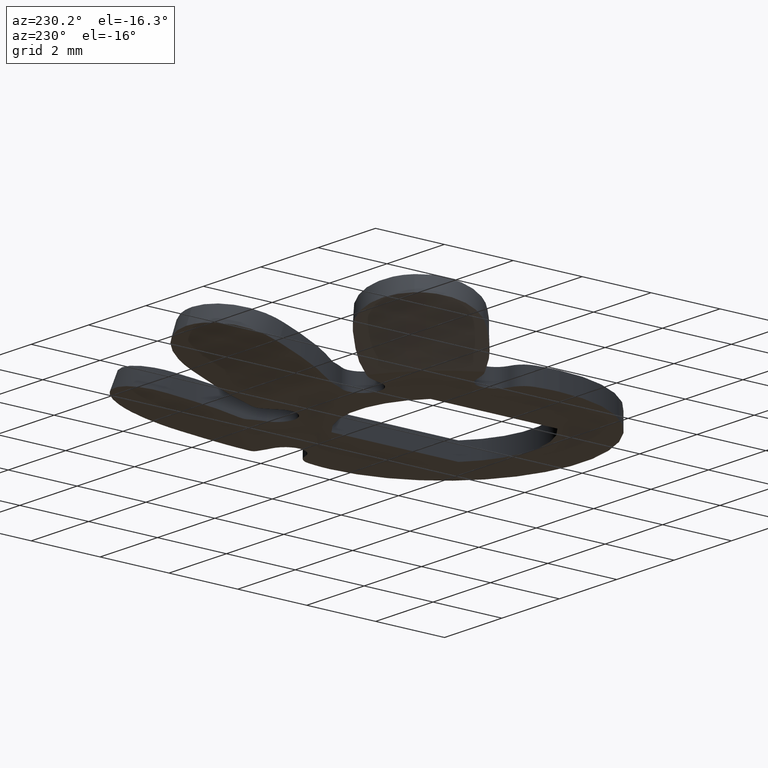
[diagram: clean part render]
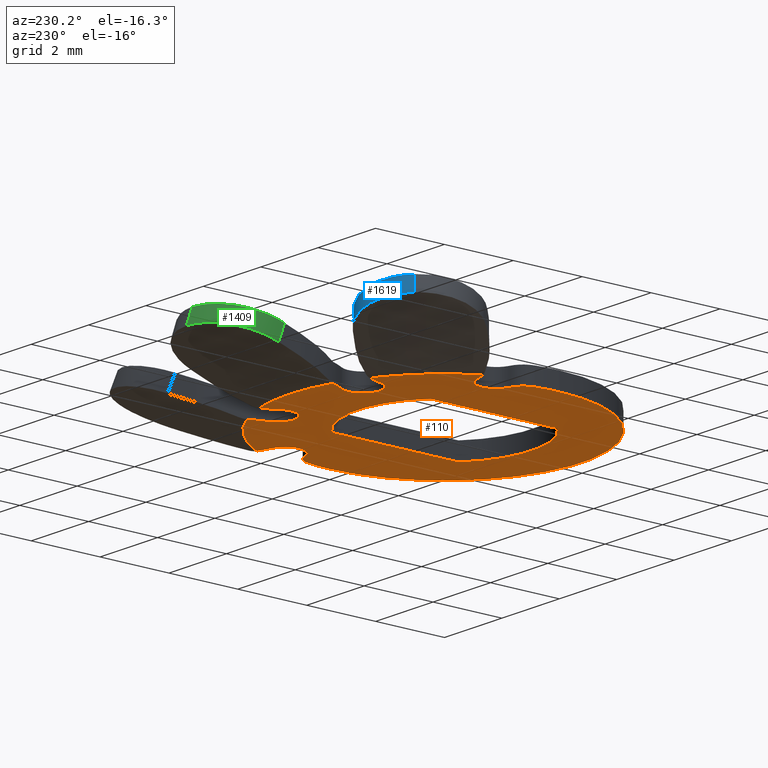
[diagram: same view with three faces highlighted in distinct colors, each labeled with its STEP entity id]
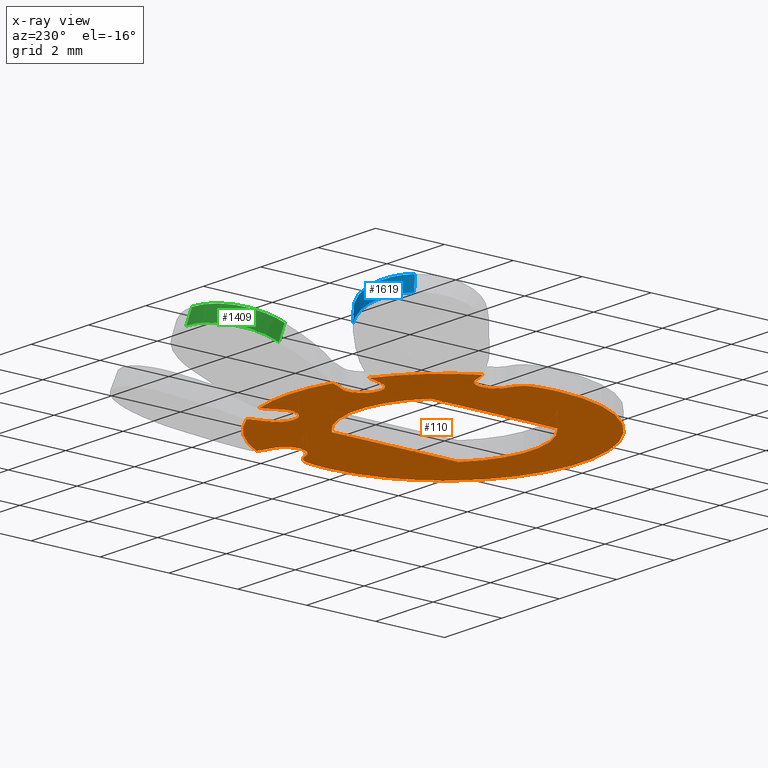
[diagram: x-ray of the same camera — body ghosted, the three highlighted faces saturated]
A machine part, auxiliary view with three faces highlighted in distinct colors.
The next image is the same camera in x-ray (body ghosted, the three faces saturated) — at least one of them is partly hidden behind the body in this view.
Their STEP definitions:

[orange] entity #110 — the highlighted planar face has unit normal (0, 0, 1).
#5 = DIRECTION ( 'NONE',  ( 0.0000000000000000000, -1.000000000000000000, 0.0000000000000000000 ) ) ;
#14 = EDGE_CURVE ( 'NONE', #172, #939, #544, .T. ) ;
#17 = DIRECTION ( 'NONE',  ( 1.000000000000000000, 2.602085213965211000E-015, 0.0000000000000000000 ) ) ;
#18 = CARTESIAN_POINT ( 'NONE',  ( -3.942765279000194600, 2.169009440899359200, 0.0000000000000000000 ) ) ;
#37 = DIRECTION ( 'NONE',  ( 1.000000000000000000, 0.0000000000000000000, 0.0000000000000000000 ) ) ;
#56 = DIRECTION ( 'NONE',  ( 1.000000000000000000, 0.0000000000000000000, 0.0000000000000000000 ) ) ;
#60 = EDGE_CURVE ( 'NONE', #1504, #808, #107, .T. ) ;
#64 = DIRECTION ( 'NONE',  ( 0.0000000000000000000, 1.000000000000000000, 0.0000000000000000000 ) ) ;
#65 = FACE_BOUND ( 'NONE', #533, .T. ) ;
#68 = CARTESIAN_POINT ( 'NONE',  ( 2.139618078849468300, 3.958792047665618900, 0.0000000000000000000 ) ) ;
#71 = DIRECTION ( 'NONE',  ( 0.0000000000000000000, 0.0000000000000000000, -1.000000000000000000 ) ) ;
#81 = AXIS2_PLACEMENT_3D ( 'NONE', #393, #1333, #524 ) ;
#88 = CARTESIAN_POINT ( 'NONE',  ( -3.450121446301577200, 0.5887800996721207500, 0.0000000000000000000 ) ) ;
#90 = DIRECTION ( 'NONE',  ( 1.000000000000000000, 0.0000000000000000000, 0.0000000000000000000 ) ) ;
#91 = ORIENTED_EDGE ( 'NONE', *, *, #499, .T. ) ;
#94 = VERTEX_POINT ( 'NONE', #519 ) ;
#98 = EDGE_CURVE ( 'NONE', #1417, #1415, #793, .T. ) ;
#106 = DIRECTION ( 'NONE',  ( -1.000000000000000000, 0.0000000000000000000, 0.0000000000000000000 ) ) ;
#107 = CIRCLE ( 'NONE', #1633, 4.000000000000000000 ) ;
#110 = ADVANCED_FACE ( 'NONE', ( #827, #65 ), #1715, .F. ) ;
#123 = DIRECTION ( 'NONE',  ( 1.000000000000000000, 0.0000000000000000000, 0.0000000000000000000 ) ) ;
#139 = CARTESIAN_POINT ( 'NONE',  ( -2.836116827043756700, 4.957437170603397700, 0.0000000000000000000 ) ) ;
#155 = EDGE_CURVE ( 'NONE', #1151, #274, #663, .T. ) ;
#158 = CIRCLE ( 'NONE', #545, 3.000000000000000000 ) ;
#160 = CARTESIAN_POINT ( 'NONE',  ( 0.0000000000000000000, 0.0000000000000000000, 0.0000000000000000000 ) ) ;
#172 = VERTEX_POINT ( 'NONE', #962 ) ;
#180 = CARTESIAN_POINT ( 'NONE',  ( -1.725000000000000100, -1.843908891458577300, 0.0000000000000000000 ) ) ;
#182 = LINE ( 'NONE', #1525, #307 ) ;
#183 = EDGE_CURVE ( 'NONE', #1374, #849, #932, .T. ) ;
#187 = DIRECTION ( 'NONE',  ( 1.000000000000000000, 8.673617379884035500E-016, 0.0000000000000000000 ) ) ;
#191 = AXIS2_PLACEMENT_3D ( 'NONE', #558, #628, #1639 ) ;
#198 = ORIENTED_EDGE ( 'NONE', *, *, #647, .T. ) ;
#214 = ORIENTED_EDGE ( 'NONE', *, *, #1342, .T. ) ;
#227 = VERTEX_POINT ( 'NONE', #424 ) ;
#239 = CARTESIAN_POINT ( 'NONE',  ( 1.000000000000000000, 3.621320343559632200, 0.0000000000000000000 ) ) ;
#241 = EDGE_CURVE ( 'NONE', #453, #1417, #1245, .T. ) ;
#244 = DIRECTION ( 'NONE',  ( 1.000000000000000000, -2.312964634635742900E-014, 0.0000000000000000000 ) ) ;
#258 = VECTOR ( 'NONE', #5, 1000.000000000000000 ) ;
#274 = VERTEX_POINT ( 'NONE', #180 ) ;
#283 = DIRECTION ( 'NONE',  ( 1.000000000000000000, -7.228014483236696800E-015, 0.0000000000000000000 ) ) ;
#289 = DIRECTION ( 'NONE',  ( -0.0000000000000000000, -0.0000000000000000000, -1.000000000000000000 ) ) ;
#294 = DIRECTION ( 'NONE',  ( 1.000000000000000000, 3.552713678800500900E-015, 0.0000000000000000000 ) ) ;
#297 = ORIENTED_EDGE ( 'NONE', *, *, #14, .T. ) ;
#307 = VECTOR ( 'NONE', #64, 1000.000000000000000 ) ;
#330 = DIRECTION ( 'NONE',  ( 1.000000000000000000, 0.0000000000000000000, 0.0000000000000000000 ) ) ;
#341 = AXIS2_PLACEMENT_3D ( 'NONE', #1332, #1352, #1714 ) ;
#353 = VERTEX_POINT ( 'NONE', #1157 ) ;
#356 = AXIS2_PLACEMENT_3D ( 'NONE', #804, #933, #123 ) ;
#361 = CIRCLE ( 'NONE', #341, 0.5000000000000000000 ) ;
#364 = CARTESIAN_POINT ( 'NONE',  ( -1.286350249507953500, 4.312227154915527500, 0.0000000000000000000 ) ) ;
#366 = CIRCLE ( 'NONE', #1097, 0.4999999999999997800 ) ;
#367 = ORIENTED_EDGE ( 'NONE', *, *, #60, .T. ) ;
#393 = CARTESIAN_POINT ( 'NONE',  ( -1.500000000000000000, 5.424095981291626100, 0.0000000000000000000 ) ) ;
#396 = CIRCLE ( 'NONE', #1710, 2.524999999999999900 ) ;
#399 = EDGE_CURVE ( 'NONE', #958, #227, #465, .T. ) ;
#401 = EDGE_CURVE ( 'NONE', #274, #1129, #745, .T. ) ;
#410 = ORIENTED_EDGE ( 'NONE', *, *, #155, .T. ) ;
#411 = CARTESIAN_POINT ( 'NONE',  ( 1.724999999999999900, 1.843908891458577100, 0.0000000000000000000 ) ) ;
#424 = CARTESIAN_POINT ( 'NONE',  ( 1.985153603136833300, 3.500382419965138300, 0.0000000000000000000 ) ) ;
#436 = CARTESIAN_POINT ( 'NONE',  ( 0.0000000000000000000, 0.0000000000000000000, 0.0000000000000000000 ) ) ;
#445 = DIRECTION ( 'NONE',  ( 0.0000000000000000000, 0.0000000000000000000, -1.000000000000000000 ) ) ;
#453 = VERTEX_POINT ( 'NONE', #364 ) ;
#454 = DIRECTION ( 'NONE',  ( 0.0000000000000000000, 0.0000000000000000000, 1.000000000000000000 ) ) ;
#465 = CIRCLE ( 'NONE', #678, 0.4999999999999997800 ) ;
#490 = DIRECTION ( 'NONE',  ( -0.0000000000000000000, -0.0000000000000000000, -1.000000000000000000 ) ) ;
#491 = CARTESIAN_POINT ( 'NONE',  ( -1.985153603136833300, 3.500382419965138300, 0.0000000000000000000 ) ) ;
#493 = CARTESIAN_POINT ( 'NONE',  ( 1.499999999999999800, 3.621320343559632200, 0.0000000000000000000 ) ) ;
#499 = EDGE_CURVE ( 'NONE', #1154, #453, #1363, .T. ) ;
#519 = CARTESIAN_POINT ( 'NONE',  ( 4.000000000000000000, 4.898587196589412800E-016, 0.0000000000000000000 ) ) ;
#523 = EDGE_CURVE ( 'NONE', #983, #1154, #1672, .T. ) ;
#524 = DIRECTION ( 'NONE',  ( 1.000000000000000000, 0.0000000000000000000, 0.0000000000000000000 ) ) ;
#533 = EDGE_LOOP ( 'NONE', ( #1341, #1134, #410, #651 ) ) ;
#544 = CIRCLE ( 'NONE', #1110, 0.5000000000000000000 ) ;
#545 = AXIS2_PLACEMENT_3D ( 'NONE', #1027, #893, #244 ) ;
#556 = DIRECTION ( 'NONE',  ( 1.000000000000000000, -2.664535259100376100E-015, 0.0000000000000000000 ) ) ;
#558 = CARTESIAN_POINT ( 'NONE',  ( 4.896075221957835800, 2.774754878398176100, 0.0000000000000000000 ) ) ;
#561 = CIRCLE ( 'NONE', #823, 0.5000000000000000000 ) ;
#569 = CARTESIAN_POINT ( 'NONE',  ( 3.450121446301580800, 0.5887800996721007700, 0.0000000000000000000 ) ) ;
#574 = ORIENTED_EDGE ( 'NONE', *, *, #980, .T. ) ;
#575 = ORIENTED_EDGE ( 'NONE', *, *, #98, .T. ) ;
#605 = DIRECTION ( 'NONE',  ( 0.0000000000000000000, 0.0000000000000000000, -1.000000000000000000 ) ) ;
#612 = ORIENTED_EDGE ( 'NONE', *, *, #1403, .T. ) ;
#628 = DIRECTION ( 'NONE',  ( 0.0000000000000000000, 0.0000000000000000000, -1.000000000000000000 ) ) ;
#635 = DIRECTION ( 'NONE',  ( 1.000000000000000000, 0.0000000000000000000, 0.0000000000000000000 ) ) ;
#642 = ORIENTED_EDGE ( 'NONE', *, *, #1454, .T. ) ;
#647 = EDGE_CURVE ( 'NONE', #710, #983, #158, .T. ) ;
#651 = ORIENTED_EDGE ( 'NONE', *, *, #401, .T. ) ;
#654 = AXIS2_PLACEMENT_3D ( 'NONE', #569, #1006, #187 ) ;
#663 = LINE ( 'NONE', #818, #258 ) ;
#665 = ORIENTED_EDGE ( 'NONE', *, *, #852, .T. ) ;
#678 = AXIS2_PLACEMENT_3D ( 'NONE', #493, #1433, #635 ) ;
#682 = DIRECTION ( 'NONE',  ( 0.0000000000000000000, 0.0000000000000000000, -1.000000000000000000 ) ) ;
#686 = DIRECTION ( 'NONE',  ( 1.000000000000000000, 0.0000000000000000000, 0.0000000000000000000 ) ) ;
#692 = CARTESIAN_POINT ( 'NONE',  ( 1.499999999999999800, 3.621320343559632200, 0.0000000000000000000 ) ) ;
#695 = CIRCLE ( 'NONE', #744, 4.000000000000000000 ) ;
#705 = CARTESIAN_POINT ( 'NONE',  ( -3.561744368610708600, 2.046515551782392500, 0.0000000000000000000 ) ) ;
#710 = VERTEX_POINT ( 'NONE', #1557 ) ;
#721 = CARTESIAN_POINT ( 'NONE',  ( -1.071428571428571000, 3.878859720378488700, 0.0000000000000000000 ) ) ;
#730 = EDGE_LOOP ( 'NONE', ( #1601, #1503, #1467, #854, #1144, #746, #214, #642, #367, #1582, #297, #612, #574, #198, #1136, #91, #1623, #575, #665, #1501 ) ) ;
#744 = AXIS2_PLACEMENT_3D ( 'NONE', #1653, #490, #1610 ) ;
#745 = CIRCLE ( 'NONE', #1045, 2.524999999999999900 ) ;
#746 = ORIENTED_EDGE ( 'NONE', *, *, #1311, .T. ) ;
#752 = CARTESIAN_POINT ( 'NONE',  ( -4.000000000000000000, 0.0000000000000000000, 0.0000000000000000000 ) ) ;
#772 = DIRECTION ( 'NONE',  ( 0.0000000000000000000, 0.0000000000000000000, 1.000000000000000000 ) ) ;
#777 = CARTESIAN_POINT ( 'NONE',  ( 1.725000000000000300, -1.843908891458576800, 0.0000000000000000000 ) ) ;
#793 = CIRCLE ( 'NONE', #81, 3.000000000000000000 ) ;
#801 = EDGE_CURVE ( 'NONE', #1541, #1374, #1117, .T. ) ;
#804 = CARTESIAN_POINT ( 'NONE',  ( 0.0000000000000000000, 0.0000000000000000000, -2.117582368135750800E-019 ) ) ;
#808 = VERTEX_POINT ( 'NONE', #1163 ) ;
#816 = EDGE_CURVE ( 'NONE', #808, #172, #1729, .T. ) ;
#818 = CARTESIAN_POINT ( 'NONE',  ( -1.725000000000000100, 1.843908891458577300, 0.0000000000000000000 ) ) ;
#823 = AXIS2_PLACEMENT_3D ( 'NONE', #1268, #1354, #56 ) ;
#827 = FACE_OUTER_BOUND ( 'NONE', #730, .T. ) ;
#832 = CARTESIAN_POINT ( 'NONE',  ( 0.0000000000000000000, 0.0000000000000000000, 0.0000000000000000000 ) ) ;
#833 = DIRECTION ( 'NONE',  ( 0.0000000000000000000, 0.0000000000000000000, -1.000000000000000000 ) ) ;
#839 = CARTESIAN_POINT ( 'NONE',  ( 1.286350249507954200, 4.312227154915527500, 0.0000000000000000000 ) ) ;
#840 = CIRCLE ( 'NONE', #1278, 4.000000000000000000 ) ;
#842 = CARTESIAN_POINT ( 'NONE',  ( -1.499999999999999600, 3.621320343559632200, 0.0000000000000000000 ) ) ;
#849 = VERTEX_POINT ( 'NONE', #897 ) ;
#852 = EDGE_CURVE ( 'NONE', #1415, #958, #366, .T. ) ;
#854 = ORIENTED_EDGE ( 'NONE', *, *, #1396, .T. ) ;
#868 = CARTESIAN_POINT ( 'NONE',  ( 3.942995938630377700, 0.6728915424824008000, 0.0000000000000000000 ) ) ;
#893 = DIRECTION ( 'NONE',  ( 0.0000000000000000000, 0.0000000000000000000, -1.000000000000000000 ) ) ;
#897 = CARTESIAN_POINT ( 'NONE',  ( 3.561744368610718400, 2.046515551782373900, 0.0000000000000000000 ) ) ;
#906 = DIRECTION ( 'NONE',  ( 0.0000000000000000000, 0.0000000000000000000, 1.000000000000000000 ) ) ;
#907 = VERTEX_POINT ( 'NONE', #411 ) ;
#920 = AXIS2_PLACEMENT_3D ( 'NONE', #139, #682, #37 ) ;
#921 = DIRECTION ( 'NONE',  ( -0.0000000000000000000, -0.0000000000000000000, -1.000000000000000000 ) ) ;
#928 = CIRCLE ( 'NONE', #654, 0.5000000000000000000 ) ;
#932 = CIRCLE ( 'NONE', #1519, 2.999999999999999600 ) ;
#933 = DIRECTION ( 'NONE',  ( 0.0000000000000000000, -0.0000000000000000000, 1.000000000000000000 ) ) ;
#939 = VERTEX_POINT ( 'NONE', #705 ) ;
#958 = VERTEX_POINT ( 'NONE', #239 ) ;
#962 = CARTESIAN_POINT ( 'NONE',  ( -3.566401869253388800, 1.075071024158839300, 0.0000000000000000000 ) ) ;
#971 = CARTESIAN_POINT ( 'NONE',  ( 0.0000000000000000000, 0.0000000000000000000, 0.0000000000000000000 ) ) ;
#980 = EDGE_CURVE ( 'NONE', #1255, #710, #1264, .T. ) ;
#983 = VERTEX_POINT ( 'NONE', #491 ) ;
#997 = CARTESIAN_POINT ( 'NONE',  ( 3.942765279000205700, 2.169009440899338800, 0.0000000000000000000 ) ) ;
#1006 = DIRECTION ( 'NONE',  ( 0.0000000000000000000, 0.0000000000000000000, -1.000000000000000000 ) ) ;
#1015 = DIRECTION ( 'NONE',  ( 1.000000000000000000, 1.734723475976807100E-015, 0.0000000000000000000 ) ) ;
#1027 = CARTESIAN_POINT ( 'NONE',  ( -4.896075221957836700, 2.774754878398177000, 0.0000000000000000000 ) ) ;
#1041 = DIRECTION ( 'NONE',  ( 0.0000000000000000000, 0.0000000000000000000, -1.000000000000000000 ) ) ;
#1042 = EDGE_CURVE ( 'NONE', #1129, #907, #182, .T. ) ;
#1045 = AXIS2_PLACEMENT_3D ( 'NONE', #1693, #906, #90 ) ;
#1097 = AXIS2_PLACEMENT_3D ( 'NONE', #692, #1428, #1249 ) ;
#1110 = AXIS2_PLACEMENT_3D ( 'NONE', #1560, #772, #1690 ) ;
#1113 = DIRECTION ( 'NONE',  ( 0.0000000000000000000, 0.0000000000000000000, -1.000000000000000000 ) ) ;
#1117 = CIRCLE ( 'NONE', #1188, 4.500000000000003600 ) ;
#1120 = DIRECTION ( 'NONE',  ( -1.000000000000000000, 0.0000000000000000000, 0.0000000000000000000 ) ) ;
#1129 = VERTEX_POINT ( 'NONE', #777 ) ;
#1134 = ORIENTED_EDGE ( 'NONE', *, *, #1517, .T. ) ;
#1135 = AXIS2_PLACEMENT_3D ( 'NONE', #971, #71, #330 ) ;
#1136 = ORIENTED_EDGE ( 'NONE', *, *, #523, .T. ) ;
#1140 = CIRCLE ( 'NONE', #191, 3.000000000000000900 ) ;
#1144 = ORIENTED_EDGE ( 'NONE', *, *, #1580, .T. ) ;
#1151 = VERTEX_POINT ( 'NONE', #1668 ) ;
#1154 = VERTEX_POINT ( 'NONE', #721 ) ;
#1157 = CARTESIAN_POINT ( 'NONE',  ( 3.182682292205207400, 1.561361948645538800, 0.0000000000000000000 ) ) ;
#1163 = CARTESIAN_POINT ( 'NONE',  ( -3.942995938630374100, 0.6728915424824237800, 0.0000000000000000000 ) ) ;
#1170 = CARTESIAN_POINT ( 'NONE',  ( -5.401456761889874900E-019, 0.0000000000000000000, 0.0000000000000000000 ) ) ;
#1188 = AXIS2_PLACEMENT_3D ( 'NONE', #832, #605, #556 ) ;
#1238 = CIRCLE ( 'NONE', #920, 3.000000000000000000 ) ;
#1245 = CIRCLE ( 'NONE', #1695, 4.500000000000003600 ) ;
#1246 = EDGE_CURVE ( 'NONE', #227, #1541, #1140, .T. ) ;
#1249 = DIRECTION ( 'NONE',  ( 1.000000000000000000, 0.0000000000000000000, 0.0000000000000000000 ) ) ;
#1255 = VERTEX_POINT ( 'NONE', #18 ) ;
#1264 = CIRCLE ( 'NONE', #1135, 4.500000000000003600 ) ;
#1268 = CARTESIAN_POINT ( 'NONE',  ( 3.682682292205207800, 1.561361948645538800, 0.0000000000000000000 ) ) ;
#1278 = AXIS2_PLACEMENT_3D ( 'NONE', #436, #289, #1120 ) ;
#1280 = DIRECTION ( 'NONE',  ( 1.000000000000000000, 0.0000000000000000000, 0.0000000000000000000 ) ) ;
#1285 = DIRECTION ( 'NONE',  ( 0.0000000000000000000, 0.0000000000000000000, 1.000000000000000000 ) ) ;
#1292 = CARTESIAN_POINT ( 'NONE',  ( 3.566401869253394500, 1.075071024158819900, 0.0000000000000000000 ) ) ;
#1311 = EDGE_CURVE ( 'NONE', #1544, #1466, #928, .T. ) ;
#1313 = AXIS2_PLACEMENT_3D ( 'NONE', #1677, #1041, #283 ) ;
#1332 = CARTESIAN_POINT ( 'NONE',  ( 3.682682292205207800, 1.561361948645538800, 0.0000000000000000000 ) ) ;
#1333 = DIRECTION ( 'NONE',  ( 0.0000000000000000000, 0.0000000000000000000, -1.000000000000000000 ) ) ;
#1341 = ORIENTED_EDGE ( 'NONE', *, *, #1042, .T. ) ;
#1342 = EDGE_CURVE ( 'NONE', #1466, #94, #695, .T. ) ;
#1352 = DIRECTION ( 'NONE',  ( 0.0000000000000000000, 0.0000000000000000000, 1.000000000000000000 ) ) ;
#1354 = DIRECTION ( 'NONE',  ( 0.0000000000000000000, 0.0000000000000000000, 1.000000000000000000 ) ) ;
#1361 = AXIS2_PLACEMENT_3D ( 'NONE', #88, #445, #1015 ) ;
#1363 = CIRCLE ( 'NONE', #1313, 3.000000000000000000 ) ;
#1374 = VERTEX_POINT ( 'NONE', #997 ) ;
#1396 = EDGE_CURVE ( 'NONE', #849, #353, #561, .T. ) ;
#1403 = EDGE_CURVE ( 'NONE', #939, #1255, #1238, .T. ) ;
#1415 = VERTEX_POINT ( 'NONE', #1621 ) ;
#1417 = VERTEX_POINT ( 'NONE', #839 ) ;
#1428 = DIRECTION ( 'NONE',  ( 0.0000000000000000000, 0.0000000000000000000, 1.000000000000000000 ) ) ;
#1433 = DIRECTION ( 'NONE',  ( 0.0000000000000000000, 0.0000000000000000000, 1.000000000000000000 ) ) ;
#1454 = EDGE_CURVE ( 'NONE', #94, #1504, #840, .T. ) ;
#1466 = VERTEX_POINT ( 'NONE', #868 ) ;
#1467 = ORIENTED_EDGE ( 'NONE', *, *, #183, .T. ) ;
#1501 = ORIENTED_EDGE ( 'NONE', *, *, #399, .T. ) ;
#1503 = ORIENTED_EDGE ( 'NONE', *, *, #801, .T. ) ;
#1504 = VERTEX_POINT ( 'NONE', #752 ) ;
#1517 = EDGE_CURVE ( 'NONE', #907, #1151, #396, .T. ) ;
#1519 = AXIS2_PLACEMENT_3D ( 'NONE', #1625, #833, #17 ) ;
#1525 = CARTESIAN_POINT ( 'NONE',  ( 1.725000000000000100, -1.843908891458577300, 0.0000000000000000000 ) ) ;
#1541 = VERTEX_POINT ( 'NONE', #68 ) ;
#1544 = VERTEX_POINT ( 'NONE', #1292 ) ;
#1557 = CARTESIAN_POINT ( 'NONE',  ( -2.139618078849468800, 3.958792047665618900, 0.0000000000000000000 ) ) ;
#1560 = CARTESIAN_POINT ( 'NONE',  ( -3.682682292205200700, 1.561361948645558100, 0.0000000000000000000 ) ) ;
#1572 = AXIS2_PLACEMENT_3D ( 'NONE', #842, #454, #686 ) ;
#1580 = EDGE_CURVE ( 'NONE', #353, #1544, #361, .T. ) ;
#1582 = ORIENTED_EDGE ( 'NONE', *, *, #816, .T. ) ;
#1601 = ORIENTED_EDGE ( 'NONE', *, *, #1246, .T. ) ;
#1610 = DIRECTION ( 'NONE',  ( -1.000000000000000000, 0.0000000000000000000, 0.0000000000000000000 ) ) ;
#1621 = CARTESIAN_POINT ( 'NONE',  ( 1.071428571428571400, 3.878859720378488300, 0.0000000000000000000 ) ) ;
#1623 = ORIENTED_EDGE ( 'NONE', *, *, #241, .T. ) ;
#1625 = CARTESIAN_POINT ( 'NONE',  ( 2.836116827043779800, 4.957437170603382600, 0.0000000000000000000 ) ) ;
#1633 = AXIS2_PLACEMENT_3D ( 'NONE', #1706, #921, #106 ) ;
#1639 = DIRECTION ( 'NONE',  ( 1.000000000000000000, 0.0000000000000000000, 0.0000000000000000000 ) ) ;
#1653 = CARTESIAN_POINT ( 'NONE',  ( 0.0000000000000000000, 0.0000000000000000000, 0.0000000000000000000 ) ) ;
#1668 = CARTESIAN_POINT ( 'NONE',  ( -1.724999999999999600, 1.843908891458577500, 0.0000000000000000000 ) ) ;
#1672 = CIRCLE ( 'NONE', #1572, 0.5000000000000000000 ) ;
#1677 = CARTESIAN_POINT ( 'NONE',  ( 1.499999999999999800, 5.424095981291627800, 0.0000000000000000000 ) ) ;
#1690 = DIRECTION ( 'NONE',  ( 1.000000000000000000, 0.0000000000000000000, 0.0000000000000000000 ) ) ;
#1693 = CARTESIAN_POINT ( 'NONE',  ( -5.401456761889874900E-019, 0.0000000000000000000, 0.0000000000000000000 ) ) ;
#1695 = AXIS2_PLACEMENT_3D ( 'NONE', #160, #1113, #294 ) ;
#1706 = CARTESIAN_POINT ( 'NONE',  ( 0.0000000000000000000, 0.0000000000000000000, 0.0000000000000000000 ) ) ;
#1710 = AXIS2_PLACEMENT_3D ( 'NONE', #1170, #1285, #1280 ) ;
#1714 = DIRECTION ( 'NONE',  ( 1.000000000000000000, 0.0000000000000000000, 0.0000000000000000000 ) ) ;
#1715 = PLANE ( 'NONE',  #356 ) ;
#1729 = CIRCLE ( 'NONE', #1361, 0.5000000000000000000 ) ;

[blue] entity #1619 — the highlighted cylindrical surface (partial cylindrical patch) has radius 1.5 mm, axis along (0.2357, -0.2357, 0.9428).
#74 = CARTESIAN_POINT ( 'NONE',  ( -4.726079195193233500, 5.666478840310746000, 0.9872256571698016000 ) ) ;
#78 = CARTESIAN_POINT ( 'NONE',  ( -5.229770581643996300, 5.369892709430446100, 1.028595479208968200 ) ) ;
#79 = CARTESIAN_POINT ( 'NONE',  ( -3.939164437171949200, 5.626979604168959700, 1.337366316422131700 ) ) ;
#137 = CARTESIAN_POINT ( 'NONE',  ( -3.224804046219519100, 5.346124389779144600, 0.5860651893589150500 ) ) ;
#142 = LINE ( 'NONE', #331, #867 ) ;
#174 = CARTESIAN_POINT ( 'NONE',  ( -3.109130276534830100, 5.230450620094456000, 1.048760268099292000 ) ) ;
#190 = B_SPLINE_CURVE_WITH_KNOTS ( 'NONE', 3,
 ( #1419, #1019, #344, #1553, #762, #1678, #894, #79, #1028, #215, #1164, #355, #1294, #489 ),
 .UNSPECIFIED., .F., .F.,
 ( 4, 2, 2, 2, 2, 2, 4 ),
 ( 1.301042606982605500E-018, 0.0002930243879203910900, 0.0005860487758407808700, 0.0008790731637611706000, 0.001172097551681561700, 0.001758146327522346000, 0.002344195103363130400 ),
 .UNSPECIFIED. ) ;
#215 = CARTESIAN_POINT ( 'NONE',  ( -4.323822356244973800, 5.628994458160271100, 1.417904810259690700 ) ) ;
#267 = LINE ( 'NONE', #174, #1647 ) ;
#311 = EDGE_CURVE ( 'NONE', #964, #1479, #142, .T. ) ;
#315 = CARTESIAN_POINT ( 'NONE',  ( -5.181980515339474500, 5.181980515339453100, 1.500000000000000000 ) ) ;
#331 = CARTESIAN_POINT ( 'NONE',  ( 0.0000000000000000000, 0.0000000000000000000, 22.22792206135787300 ) ) ;
#333 = CARTESIAN_POINT ( 'NONE',  ( -3.357337584700208500, 5.478657928259833600, 0.6503910318968161300 ) ) ;
#344 = CARTESIAN_POINT ( 'NONE',  ( -3.245055266573757500, 5.352629213632210900, 1.122023847624912900 ) ) ;
#355 = CARTESIAN_POINT ( 'NONE',  ( -4.875404130907195800, 5.434120066958350000, 1.489339449474831800 ) ) ;
#362 = CARTESIAN_POINT ( 'NONE',  ( -3.106557667908670200, 5.227878011468296100, 1.059050702603928400 ) ) ;
#373 = EDGE_CURVE ( 'NONE', #829, #964, #190, .T. ) ;
#477 = CARTESIAN_POINT ( 'NONE',  ( -3.517896393180107500, 5.582883004327428900, 0.7113922062524096200 ) ) ;
#489 = CARTESIAN_POINT ( 'NONE',  ( -5.181980515339474500, 5.181980515339453100, 1.500000000000000000 ) ) ;
#504 = CARTESIAN_POINT ( 'NONE',  ( -3.867193039028960800, 5.720381673631303300, 0.8196362706691520100 ) ) ;
#549 = CARTESIAN_POINT ( 'NONE',  ( -4.444572298807579500, 5.737237081422330600, 0.9443802491715208600 ) ) ;
#565 = DIRECTION ( 'NONE',  ( 0.2357022603955161200, -0.2357022603955151700, 0.9428090415820634700 ) ) ;
#638 = CYLINDRICAL_SURFACE ( 'NONE', #703, 1.499999999999999800 ) ;
#703 = AXIS2_PLACEMENT_3D ( 'NONE', #1080, #565, #1590 ) ;
#717 = EDGE_CURVE ( 'NONE', #1479, #1408, #1671, .T. ) ;
#762 = CARTESIAN_POINT ( 'NONE',  ( -3.485345170129433300, 5.498329556983208000, 1.210537340483334600 ) ) ;
#829 = VERTEX_POINT ( 'NONE', #362 ) ;
#863 = CARTESIAN_POINT ( 'NONE',  ( -4.059481853644173900, 5.754635513290582000, 0.8679251152951443800 ) ) ;
#867 = VECTOR ( 'NONE', #1145, 1000.000000000000100 ) ;
#886 = CARTESIAN_POINT ( 'NONE',  ( -4.346985846895517400, 5.748755357338423800, 0.9266777509689971800 ) ) ;
#894 = CARTESIAN_POINT ( 'NONE',  ( -3.751884390364583300, 5.593436759912415300, 1.290148664791235700 ) ) ;
#913 = EDGE_CURVE ( 'NONE', #1408, #829, #267, .T. ) ;
#957 = ORIENTED_EDGE ( 'NONE', *, *, #373, .F. ) ;
#959 = ORIENTED_EDGE ( 'NONE', *, *, #913, .F. ) ;
#964 = VERTEX_POINT ( 'NONE', #315 ) ;
#1019 = CARTESIAN_POINT ( 'NONE',  ( -3.172838615463146700, 5.294158959022772700, 1.091167200868840200 ) ) ;
#1025 = ORIENTED_EDGE ( 'NONE', *, *, #311, .F. ) ;
#1028 = CARTESIAN_POINT ( 'NONE',  ( -4.036260714277668500, 5.634607556437162900, 1.359368318076134200 ) ) ;
#1038 = FACE_OUTER_BOUND ( 'NONE', #1593, .T. ) ;
#1080 = CARTESIAN_POINT ( 'NONE',  ( 0.0000000000000000000, 0.0000000000000000000, 17.72792206135786900 ) ) ;
#1105 = DIRECTION ( 'NONE',  ( 0.2357022603955161200, -0.2357022603955151200, 0.9428090415820634700 ) ) ;
#1145 = DIRECTION ( 'NONE',  ( -0.2357022603955160600, 0.2357022603955151500, -0.9428090415820633600 ) ) ;
#1164 = CARTESIAN_POINT ( 'NONE',  ( -4.518190999993339400, 5.586991761301910700, 1.448549850599672600 ) ) ;
#1197 = ORIENTED_EDGE ( 'NONE', *, *, #717, .F. ) ;
#1269 = CARTESIAN_POINT ( 'NONE',  ( -5.154249342003576700, 5.432145592622741300, 1.025970362798416900 ) ) ;
#1294 = CARTESIAN_POINT ( 'NONE',  ( -5.041854692431332600, 5.322106338247595000, 1.500000000000000200 ) ) ;
#1305 = CARTESIAN_POINT ( 'NONE',  ( -4.633826024980922200, 5.696008224633757800, 0.9745729836361971500 ) ) ;
#1348 = CARTESIAN_POINT ( 'NONE',  ( -5.299831645537231900, 5.299831645537211400, 1.028595479208968200 ) ) ;
#1383 = CARTESIAN_POINT ( 'NONE',  ( -3.224804046219519100, 5.346124389779144600, 0.5860651893589150500 ) ) ;
#1388 = CARTESIAN_POINT ( 'NONE',  ( -5.299831645537231900, 5.299831645537211400, 1.028595479208968200 ) ) ;
#1395 = CARTESIAN_POINT ( 'NONE',  ( -4.905746502957233800, 5.589367136940866800, 1.007811277319115900 ) ) ;
#1408 = VERTEX_POINT ( 'NONE', #1383 ) ;
#1410 = CARTESIAN_POINT ( 'NONE',  ( -4.992746849835743500, 5.541689395094463700, 1.015641333992059100 ) ) ;
#1419 = CARTESIAN_POINT ( 'NONE',  ( -3.106557667908670200, 5.227878011468296100, 1.059050702603928400 ) ) ;
#1479 = VERTEX_POINT ( 'NONE', #1348 ) ;
#1553 = CARTESIAN_POINT ( 'NONE',  ( -3.400809910255692300, 5.454542605777478800, 1.181562583961582000 ) ) ;
#1590 = DIRECTION ( 'NONE',  ( 0.9701425001453319900, 0.0000000000000000000, -0.2425356250363326600 ) ) ;
#1593 = EDGE_LOOP ( 'NONE', ( #1025, #957, #959, #1197 ) ) ;
#1619 = ADVANCED_FACE ( 'NONE', ( #1038 ), #638, .T. ) ;
#1647 = VECTOR ( 'NONE', #1105, 1000.000000000000100 ) ;
#1671 = B_SPLINE_CURVE_WITH_KNOTS ( 'NONE', 3,
 ( #1388, #78, #1269, #1410, #1395, #74, #1305, #549, #886, #863, #504, #477, #333, #137 ),
 .UNSPECIFIED., .F., .F.,
 ( 4, 2, 2, 2, 2, 2, 4 ),
 ( 0.0000000000000000000, 0.0002930194012330182100, 0.0005860388024660364300, 0.0008790582036990546400, 0.001172077604932072900, 0.001758116407398109300, 0.002344155209864145700 ),
 .UNSPECIFIED. ) ;
#1678 = CARTESIAN_POINT ( 'NONE',  ( -3.661095378293107900, 5.567724091482767300, 1.264857422470551600 ) ) ;

[green] entity #1409 — the highlighted cylindrical surface (partial cylindrical patch) has radius 1.5 mm, axis along (-0, 0.3333, -0.9428).
#49 = CARTESIAN_POINT ( 'NONE',  ( -1.198657046398550600, 6.772687080920853500, 1.340096568720090800 ) ) ;
#73 = CARTESIAN_POINT ( 'NONE',  ( -1.499999999999999800, 5.893335986250543900, 1.059050702603922600 ) ) ;
#115 = VERTEX_POINT ( 'NONE', #931 ) ;
#168 = CARTESIAN_POINT ( 'NONE',  ( -1.073735115053968000E-015, -7.466231689562451100E-033, 22.22792206135787300 ) ) ;
#186 = CARTESIAN_POINT ( 'NONE',  ( -1.460164743941979800, 6.268091497162052100, 1.184121858734593600 ) ) ;
#210 = FACE_OUTER_BOUND ( 'NONE', #1336, .T. ) ;
#240 = CARTESIAN_POINT ( 'NONE',  ( -1.423395918069261500, 6.519518504788556400, 0.7378955607323264300 ) ) ;
#286 = EDGE_CURVE ( 'NONE', #923, #1193, #691, .T. ) ;
#325 = CARTESIAN_POINT ( 'NONE',  ( -1.499999999999999800, 5.893335986250543900, 1.059050702603922600 ) ) ;
#343 = CARTESIAN_POINT ( 'NONE',  ( -1.499999999999999800, 6.064032227981639000, 0.5762488223995144700 ) ) ;
#392 = ORIENTED_EDGE ( 'NONE', *, *, #1460, .T. ) ;
#446 = CARTESIAN_POINT ( 'NONE',  ( -0.09908351601977211100, 7.328427124746191600, 1.500000000000000000 ) ) ;
#483 = LINE ( 'NONE', #168, #1509 ) ;
#503 = CARTESIAN_POINT ( 'NONE',  ( -1.193463668065432700, 6.931228788814857800, 0.8651866891094639500 ) ) ;
#534 = B_SPLINE_CURVE_WITH_KNOTS ( 'NONE', 3,
 ( #1441, #1181, #1575, #1317, #240, #1626, #834, #503, #785, #1443, #1048, #643, #911, #1569 ),
 .UNSPECIFIED., .F., .F.,
 ( 4, 2, 2, 2, 2, 2, 4 ),
 ( 1.571457454787580700E-017, 0.0002930181684667388000, 0.0005860363369334618800, 0.0008790545054001850200, 0.001172072673866907900, 0.001758109010800354000, 0.002344145347733799400 ),
 .UNSPECIFIED. ) ;
#587 = CARTESIAN_POINT ( 'NONE',  ( -0.4834018399552480500, 7.254457918565565300, 1.479323875126517400 ) ) ;
#643 = CARTESIAN_POINT ( 'NONE',  ( -0.3950634605185010500, 7.456623580677403500, 1.017877804390301600 ) ) ;
#691 = B_SPLINE_CURVE_WITH_KNOTS ( 'NONE', 3,
 ( #1267, #446, #990, #1393, #587, #1527, #734, #1652, #864, #49, #996, #186, #1137, #325 ),
 .UNSPECIFIED., .F., .F.,
 ( 4, 2, 2, 2, 2, 2, 4 ),
 ( 3.736661433483488400E-019, 0.0002930256960387926100, 0.0005860513920775847800, 0.0008790770881163770700, 0.001172102784155169400, 0.001758154176232752400, 0.002344205568310335700 ),
 .UNSPECIFIED. ) ;
#708 = ORIENTED_EDGE ( 'NONE', *, *, #286, .F. ) ;
#719 = LINE ( 'NONE', #343, #1727 ) ;
#723 = DIRECTION ( 'NONE',  ( 0.0000000000000000000, 0.9428090415820632500, 0.3333333333333335900 ) ) ;
#734 = CARTESIAN_POINT ( 'NONE',  ( -0.7510854804574107500, 7.137526085205256400, 1.446253122824218400 ) ) ;
#785 = CARTESIAN_POINT ( 'NONE',  ( -1.130198542996664600, 7.005248036630225000, 0.8872832104285995900 ) ) ;
#834 = CARTESIAN_POINT ( 'NONE',  ( -1.302173978696238700, 6.775147601057915900, 0.8177812283600713900 ) ) ;
#864 = CARTESIAN_POINT ( 'NONE',  ( -0.9912076673942228400, 6.971915455220591100, 1.398586684724266500 ) ) ;
#911 = CARTESIAN_POINT ( 'NONE',  ( -0.1981633399704008100, 7.495093791412856800, 1.028595479208968000 ) ) ;
#923 = VERTEX_POINT ( 'NONE', #1438 ) ;
#931 = CARTESIAN_POINT ( 'NONE',  ( -1.499999999999999800, 6.060561618159758800, 0.5860651893590866900 ) ) ;
#990 = CARTESIAN_POINT ( 'NONE',  ( -0.1965064501185777000, 7.319039635548083600, 1.497388716553588200 ) ) ;
#996 = CARTESIAN_POINT ( 'NONE',  ( -1.310402384440981100, 6.612429888961257200, 1.292007132357390100 ) ) ;
#1048 = CARTESIAN_POINT ( 'NONE',  ( -0.7557468478607164400, 7.312209147487568100, 0.9768804874492038600 ) ) ;
#1065 = ORIENTED_EDGE ( 'NONE', *, *, #1705, .F. ) ;
#1137 = CARTESIAN_POINT ( 'NONE',  ( -1.500000000000000200, 6.080803537071273200, 1.123282575619345900 ) ) ;
#1165 = DIRECTION ( 'NONE',  ( -4.022472449296163500E-017, 0.3333333333333330400, -0.9428090415820634700 ) ) ;
#1181 = CARTESIAN_POINT ( 'NONE',  ( -1.499999999999999600, 6.154278516581879200, 0.6182286373091523400 ) ) ;
#1191 = AXIS2_PLACEMENT_3D ( 'NONE', #1494, #1165, #723 ) ;
#1193 = VERTEX_POINT ( 'NONE', #73 ) ;
#1202 = CYLINDRICAL_SURFACE ( 'NONE', #1191, 1.500000000000000200 ) ;
#1267 = CARTESIAN_POINT ( 'NONE',  ( -1.893832288749800200E-016, 7.328427124746189800, 1.500000000000000000 ) ) ;
#1317 = CARTESIAN_POINT ( 'NONE',  ( -1.452209141070807600, 6.428810920196761800, 0.7088349508185263200 ) ) ;
#1336 = EDGE_LOOP ( 'NONE', ( #708, #392, #1065, #1663 ) ) ;
#1349 = CARTESIAN_POINT ( 'NONE',  ( -1.692708666284992100E-016, 7.495093791412856800, 1.028595479208968200 ) ) ;
#1393 = CARTESIAN_POINT ( 'NONE',  ( -0.3881684563587746200, 7.282278762836325500, 1.487113417323717700 ) ) ;
#1409 = ADVANCED_FACE ( 'NONE', ( #210 ), #1202, .T. ) ;
#1438 = CARTESIAN_POINT ( 'NONE',  ( -1.893832288749800200E-016, 7.328427124746189800, 1.500000000000000000 ) ) ;
#1441 = CARTESIAN_POINT ( 'NONE',  ( -1.499999999999999800, 6.060561618159758800, 0.5860651893590866900 ) ) ;
#1443 = CARTESIAN_POINT ( 'NONE',  ( -0.9228884697087493800, 7.204525423645014500, 0.9460823278403169800 ) ) ;
#1460 = EDGE_CURVE ( 'NONE', #923, #1660, #483, .T. ) ;
#1474 = DIRECTION ( 'NONE',  ( 4.022472449296162200E-017, 0.3333333333333329800, -0.9428090415820633600 ) ) ;
#1494 = CARTESIAN_POINT ( 'NONE',  ( 8.706807083555321300E-016, 1.050686748448139700E-031, 17.72792206135786900 ) ) ;
#1509 = VECTOR ( 'NONE', #1474, 1000.000000000000100 ) ;
#1527 = CARTESIAN_POINT ( 'NONE',  ( -0.6649723641364285700, 7.181901617366940500, 1.458842579633270000 ) ) ;
#1568 = EDGE_CURVE ( 'NONE', #1193, #115, #719, .T. ) ;
#1569 = CARTESIAN_POINT ( 'NONE',  ( -1.692708666284992100E-016, 7.495093791412856800, 1.028595479208968200 ) ) ;
#1575 = CARTESIAN_POINT ( 'NONE',  ( -1.490280164343710000, 6.246664885543674800, 0.6491483715633714600 ) ) ;
#1605 = DIRECTION ( 'NONE',  ( -4.022472449296162800E-017, 0.3333333333333329800, -0.9428090415820633600 ) ) ;
#1626 = CARTESIAN_POINT ( 'NONE',  ( -1.348190511790158500, 6.692800410741755400, 0.7923960592299114100 ) ) ;
#1652 = CARTESIAN_POINT ( 'NONE',  ( -0.9140606451224931900, 7.032803903447495800, 1.416205919493406200 ) ) ;
#1660 = VERTEX_POINT ( 'NONE', #1349 ) ;
#1663 = ORIENTED_EDGE ( 'NONE', *, *, #1568, .F. ) ;
#1705 = EDGE_CURVE ( 'NONE', #115, #1660, #534, .T. ) ;
#1727 = VECTOR ( 'NONE', #1605, 1000.000000000000100 ) ;